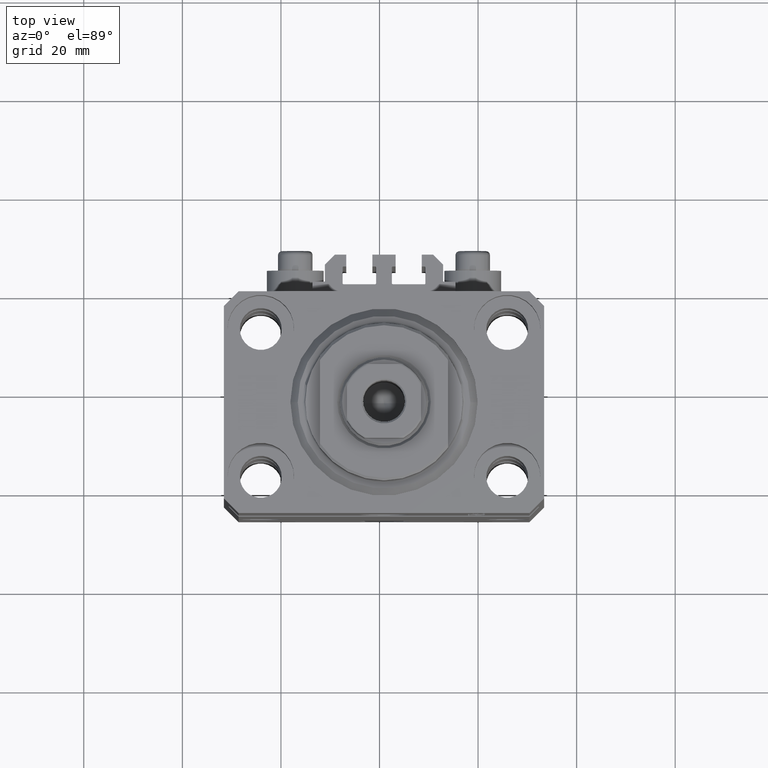
[diagram: clean part render]
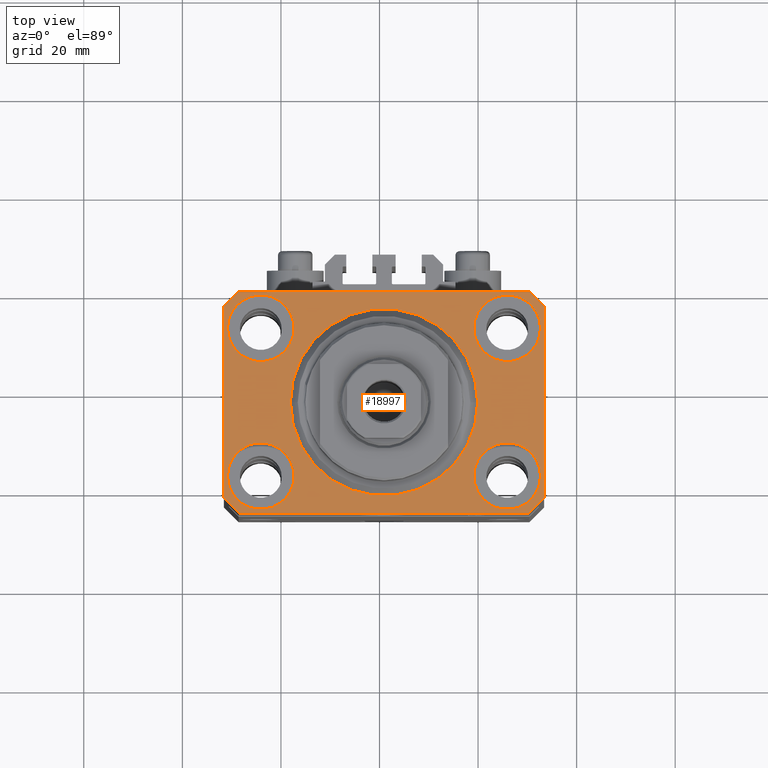
[diagram: same view with one face highlighted and labeled with its STEP entity id]
A machine part, top view. The second image highlights one B-rep face of the part: STEP entity #18997.
In plain terms, the highlighted planar face has unit normal (0, 0, 1).
Its self-contained STEP definition (entity closure, byte-faithful):
#188 = EDGE_CURVE ( 'NONE', #351, #15461, #39871, .T. ) ;
#351 = VERTEX_POINT ( 'NONE', #32599 ) ;
#956 = ORIENTED_EDGE ( 'NONE', *, *, #38778, .T. ) ;
#962 = VECTOR ( 'NONE', #21456, 1000.000000000000114 ) ;
#1853 = CARTESIAN_POINT ( 'NONE',  ( -29.49999999999650413, -22.49999999999949907, 0.000000000000000000 ) ) ;
#1897 = CIRCLE ( 'NONE', #15775, 19.00000000000000000 ) ;
#2062 = VERTEX_POINT ( 'NONE', #34854 ) ;
#2357 = VECTOR ( 'NONE', #44519, 1000.000000000000114 ) ;
#2491 = CARTESIAN_POINT ( 'NONE',  ( 29.49999999999650413, -22.49999999999949196, 0.000000000000000000 ) ) ;
#2742 = DIRECTION ( 'NONE',  ( 1.000000000000000000, 0.000000000000000000, 0.000000000000000000 ) ) ;
#3148 = AXIS2_PLACEMENT_3D ( 'NONE', #21298, #25167, #32875 ) ;
#3178 = CARTESIAN_POINT ( 'NONE',  ( 25.00000000000000355, -15.00000000000000000, 0.000000000000000000 ) ) ;
#3392 = DIRECTION ( 'NONE',  ( 0.000000000000000000, 0.000000000000000000, 1.000000000000000000 ) ) ;
#3964 = AXIS2_PLACEMENT_3D ( 'NONE', #38559, #8667, #42185 ) ;
#4219 = LINE ( 'NONE', #33896, #2357 ) ;
#5114 = ORIENTED_EDGE ( 'NONE', *, *, #10741, .T. ) ;
#6140 = CARTESIAN_POINT ( 'NONE',  ( 18.25000000004154543, 15.00000000000000888, 0.000000000000000000 ) ) ;
#6759 = ORIENTED_EDGE ( 'NONE', *, *, #26435, .T. ) ;
#6974 = EDGE_CURVE ( 'NONE', #19209, #10525, #4219, .T. ) ;
#7480 = VERTEX_POINT ( 'NONE', #14924 ) ;
#7614 = EDGE_CURVE ( 'NONE', #37923, #32635, #17038, .T. ) ;
#7667 = VERTEX_POINT ( 'NONE', #32734 ) ;
#7830 = CIRCLE ( 'NONE', #20157, 6.750000000022533087 ) ;
#7955 = DIRECTION ( 'NONE',  ( 0.000000000000000000, 0.000000000000000000, 1.000000000000000000 ) ) ;
#8013 = CARTESIAN_POINT ( 'NONE',  ( 18.25000000002253842, -15.00000000000000000, 0.000000000000000000 ) ) ;
#8378 = DIRECTION ( 'NONE',  ( 1.000000000000000000, 1.176083712526788232E-16, 0.000000000000000000 ) ) ;
#8501 = VERTEX_POINT ( 'NONE', #19778 ) ;
#8667 = DIRECTION ( 'NONE',  ( 0.000000000000000000, 0.000000000000000000, 1.000000000000000000 ) ) ;
#8959 = VERTEX_POINT ( 'NONE', #47663 ) ;
#9340 = DIRECTION ( 'NONE',  ( 1.000000000000000000, 0.000000000000000000, 0.000000000000000000 ) ) ;
#9710 = DIRECTION ( 'NONE',  ( 0.000000000000000000, -1.000000000000000000, 0.000000000000000000 ) ) ;
#9728 = DIRECTION ( 'NONE',  ( -0.7071067811865352493, 0.7071067811865597852, 0.000000000000000000 ) ) ;
#10412 = EDGE_CURVE ( 'NONE', #7480, #36389, #35606, .T. ) ;
#10525 = VERTEX_POINT ( 'NONE', #30652 ) ;
#10741 = EDGE_CURVE ( 'NONE', #46018, #15131, #21943, .T. ) ;
#11190 = EDGE_CURVE ( 'NONE', #15131, #19209, #21048, .T. ) ;
#11400 = AXIS2_PLACEMENT_3D ( 'NONE', #29288, #47140, #2742 ) ;
#11631 = VERTEX_POINT ( 'NONE', #6140 ) ;
#11954 = CARTESIAN_POINT ( 'NONE',  ( -19.00000000000000000, 2.326828918379970970E-15, 0.000000000000000000 ) ) ;
#12454 = ORIENTED_EDGE ( 'NONE', *, *, #7614, .F. ) ;
#12904 = EDGE_CURVE ( 'NONE', #35177, #7667, #1897, .T. ) ;
#13186 = AXIS2_PLACEMENT_3D ( 'NONE', #27927, #19956, #9340 ) ;
#13337 = CARTESIAN_POINT ( 'NONE',  ( -32.49999999999650413, 19.49999999999949907, 0.000000000000000000 ) ) ;
#13601 = LINE ( 'NONE', #16730, #33221 ) ;
#14114 = CARTESIAN_POINT ( 'NONE',  ( 24.99999999999999645, 15.00000000000000888, 0.000000000000000000 ) ) ;
#14702 = CIRCLE ( 'NONE', #3148, 6.749999999977465137 ) ;
#14708 = DIRECTION ( 'NONE',  ( 0.000000000000000000, 0.000000000000000000, 1.000000000000000000 ) ) ;
#14924 = CARTESIAN_POINT ( 'NONE',  ( 31.74999999997746869, -15.00000000000000000, 0.000000000000000000 ) ) ;
#15001 = VECTOR ( 'NONE', #45836, 1000.000000000000000 ) ;
#15131 = VERTEX_POINT ( 'NONE', #45677 ) ;
#15136 = EDGE_LOOP ( 'NONE', ( #46270, #29520 ) ) ;
#15461 = VERTEX_POINT ( 'NONE', #45375 ) ;
#15775 = AXIS2_PLACEMENT_3D ( 'NONE', #22243, #18381, #44210 ) ;
#16412 = EDGE_CURVE ( 'NONE', #36389, #7480, #14702, .T. ) ;
#16617 = FACE_BOUND ( 'NONE', #43454, .T. ) ;
#16730 = CARTESIAN_POINT ( 'NONE',  ( 32.49999999999702993, 19.49999999999945999, 0.000000000000000000 ) ) ;
#17038 = CIRCLE ( 'NONE', #13186, 6.750000000041541881 ) ;
#17458 = ORIENTED_EDGE ( 'NONE', *, *, #10412, .F. ) ;
#17847 = CARTESIAN_POINT ( 'NONE',  ( -25.00000000000000355, -15.00000000000000000, 0.000000000000000000 ) ) ;
#17950 = ORIENTED_EDGE ( 'NONE', *, *, #12904, .F. ) ;
#18169 = DIRECTION ( 'NONE',  ( 0.7071067811865483499, 0.7071067811865466846, 0.000000000000000000 ) ) ;
#18381 = DIRECTION ( 'NONE',  ( 0.000000000000000000, 0.000000000000000000, 1.000000000000000000 ) ) ;
#18788 = EDGE_CURVE ( 'NONE', #2062, #8501, #13601, .T. ) ;
#18855 = DIRECTION ( 'NONE',  ( 1.000000000000000000, 0.000000000000000000, 0.000000000000000000 ) ) ;
#18950 = EDGE_CURVE ( 'NONE', #21134, #36853, #7830, .T. ) ;
#18997 = ADVANCED_FACE ( 'NONE', ( #27485, #30622, #27968, #30858, #16617, #31340 ), #45573, .T. ) ;
#19209 = VERTEX_POINT ( 'NONE', #40233 ) ;
#19778 = CARTESIAN_POINT ( 'NONE',  ( 29.49999999999707967, 22.49999999999951328, 0.000000000000000000 ) ) ;
#19956 = DIRECTION ( 'NONE',  ( 0.000000000000000000, 0.000000000000000000, 1.000000000000000000 ) ) ;
#20157 = AXIS2_PLACEMENT_3D ( 'NONE', #25653, #7955, #37387 ) ;
#20227 = LINE ( 'NONE', #45321, #47404 ) ;
#20284 = CARTESIAN_POINT ( 'NONE',  ( -29.49999999999650413, 22.49999999999949907, 0.000000000000000000 ) ) ;
#20897 = CARTESIAN_POINT ( 'NONE',  ( -31.75000000002253842, 15.00000000000000000, 0.000000000000000000 ) ) ;
#21048 = LINE ( 'NONE', #13337, #23309 ) ;
#21134 = VERTEX_POINT ( 'NONE', #31511 ) ;
#21298 = CARTESIAN_POINT ( 'NONE',  ( 25.00000000000000355, -15.00000000000000000, 0.000000000000000000 ) ) ;
#21456 = DIRECTION ( 'NONE',  ( -0.7071067811865474617, -0.7071067811865474617, 0.000000000000000000 ) ) ;
#21943 = LINE ( 'NONE', #40270, #962 ) ;
#22243 = CARTESIAN_POINT ( 'NONE',  ( 0.000000000000000000, 0.000000000000000000, 0.000000000000000000 ) ) ;
#22323 = AXIS2_PLACEMENT_3D ( 'NONE', #14114, #29768, #28832 ) ;
#22421 = ORIENTED_EDGE ( 'NONE', *, *, #16412, .F. ) ;
#22477 = DIRECTION ( 'NONE',  ( 0.000000000000000000, 0.000000000000000000, 1.000000000000000000 ) ) ;
#22496 = CARTESIAN_POINT ( 'NONE',  ( -18.24999999995846167, -15.00000000000000000, 0.000000000000000000 ) ) ;
#23033 = CIRCLE ( 'NONE', #35371, 6.750000000041541881 ) ;
#23309 = VECTOR ( 'NONE', #9710, 1000.000000000000000 ) ;
#23557 = ORIENTED_EDGE ( 'NONE', *, *, #11190, .T. ) ;
#24120 = CARTESIAN_POINT ( 'NONE',  ( 29.49999999999707967, 22.49999999999951328, 0.000000000000000000 ) ) ;
#24444 = ORIENTED_EDGE ( 'NONE', *, *, #18788, .T. ) ;
#24531 = VECTOR ( 'NONE', #8378, 1000.000000000000000 ) ;
#25167 = DIRECTION ( 'NONE',  ( 0.000000000000000000, 0.000000000000000000, 1.000000000000000000 ) ) ;
#25653 = CARTESIAN_POINT ( 'NONE',  ( -25.00000000000000355, 15.00000000000000000, 0.000000000000000000 ) ) ;
#25698 = EDGE_LOOP ( 'NONE', ( #37207, #12454 ) ) ;
#25861 = DIRECTION ( 'NONE',  ( 1.000000000000000000, 0.000000000000000000, 0.000000000000000000 ) ) ;
#26097 = CARTESIAN_POINT ( 'NONE',  ( 0.000000000000000000, 0.000000000000000000, 0.000000000000000000 ) ) ;
#26435 = EDGE_CURVE ( 'NONE', #8501, #46018, #34973, .T. ) ;
#27137 = EDGE_LOOP ( 'NONE', ( #17458, #22421 ) ) ;
#27437 = AXIS2_PLACEMENT_3D ( 'NONE', #29690, #3392, #44398 ) ;
#27485 = FACE_BOUND ( 'NONE', #25698, .T. ) ;
#27559 = CIRCLE ( 'NONE', #11400, 6.750000000022533087 ) ;
#27927 = CARTESIAN_POINT ( 'NONE',  ( -25.00000000000000355, -15.00000000000000000, 0.000000000000000000 ) ) ;
#27968 = FACE_BOUND ( 'NONE', #15136, .T. ) ;
#28280 = CARTESIAN_POINT ( 'NONE',  ( -31.75000000004154899, -15.00000000000000000, 0.000000000000000000 ) ) ;
#28339 = ORIENTED_EDGE ( 'NONE', *, *, #30618, .T. ) ;
#28832 = DIRECTION ( 'NONE',  ( 1.000000000000000000, 0.000000000000000000, 0.000000000000000000 ) ) ;
#28983 = ORIENTED_EDGE ( 'NONE', *, *, #18950, .F. ) ;
#29288 = CARTESIAN_POINT ( 'NONE',  ( -25.00000000000000355, 15.00000000000000000, 0.000000000000000000 ) ) ;
#29520 = ORIENTED_EDGE ( 'NONE', *, *, #32956, .F. ) ;
#29690 = CARTESIAN_POINT ( 'NONE',  ( 24.99999999999999645, 15.00000000000000888, 0.000000000000000000 ) ) ;
#29768 = DIRECTION ( 'NONE',  ( 0.000000000000000000, 0.000000000000000000, 1.000000000000000000 ) ) ;
#30618 = EDGE_CURVE ( 'NONE', #15461, #2062, #20227, .T. ) ;
#30622 = FACE_BOUND ( 'NONE', #27137, .T. ) ;
#30652 = CARTESIAN_POINT ( 'NONE',  ( -29.49999999999650413, -22.49999999999949907, 0.000000000000000000 ) ) ;
#30736 = EDGE_LOOP ( 'NONE', ( #6759, #5114, #23557, #39266, #956, #42733, #28339, #24444 ) ) ;
#30791 = CIRCLE ( 'NONE', #22323, 6.749999999958452790 ) ;
#30858 = FACE_BOUND ( 'NONE', #38041, .T. ) ;
#31094 = DIRECTION ( 'NONE',  ( 1.334402673828349134E-14, 1.000000000000000000, 0.000000000000000000 ) ) ;
#31340 = FACE_OUTER_BOUND ( 'NONE', #30736, .T. ) ;
#31511 = CARTESIAN_POINT ( 'NONE',  ( -18.24999999997747224, 15.00000000000000000, 0.000000000000000000 ) ) ;
#32599 = CARTESIAN_POINT ( 'NONE',  ( 29.49999999999650413, -22.49999999999949196, 0.000000000000000000 ) ) ;
#32635 = VERTEX_POINT ( 'NONE', #22496 ) ;
#32734 = CARTESIAN_POINT ( 'NONE',  ( 19.00000000000000000, 0.000000000000000000, 0.000000000000000000 ) ) ;
#32839 = CIRCLE ( 'NONE', #27437, 6.749999999958452790 ) ;
#32875 = DIRECTION ( 'NONE',  ( 1.000000000000000000, 0.000000000000000000, 0.000000000000000000 ) ) ;
#32956 = EDGE_CURVE ( 'NONE', #11631, #8959, #32839, .T. ) ;
#33221 = VECTOR ( 'NONE', #9728, 1000.000000000000000 ) ;
#33534 = ORIENTED_EDGE ( 'NONE', *, *, #45930, .F. ) ;
#33896 = CARTESIAN_POINT ( 'NONE',  ( -32.49999999999650413, -19.49999999999949907, 0.000000000000000000 ) ) ;
#34854 = CARTESIAN_POINT ( 'NONE',  ( 32.49999999999702993, 19.49999999999945999, 0.000000000000000000 ) ) ;
#34973 = LINE ( 'NONE', #24120, #15001 ) ;
#35177 = VERTEX_POINT ( 'NONE', #11954 ) ;
#35371 = AXIS2_PLACEMENT_3D ( 'NONE', #17847, #14708, #44373 ) ;
#35606 = CIRCLE ( 'NONE', #40213, 6.749999999977465137 ) ;
#36389 = VERTEX_POINT ( 'NONE', #8013 ) ;
#36853 = VERTEX_POINT ( 'NONE', #20897 ) ;
#37207 = ORIENTED_EDGE ( 'NONE', *, *, #40869, .F. ) ;
#37387 = DIRECTION ( 'NONE',  ( 1.000000000000000000, 0.000000000000000000, 0.000000000000000000 ) ) ;
#37730 = EDGE_CURVE ( 'NONE', #36853, #21134, #27559, .T. ) ;
#37923 = VERTEX_POINT ( 'NONE', #28280 ) ;
#38041 = EDGE_LOOP ( 'NONE', ( #28983, #45701 ) ) ;
#38559 = CARTESIAN_POINT ( 'NONE',  ( 0.000000000000000000, 0.000000000000000000, 0.000000000000000000 ) ) ;
#38778 = EDGE_CURVE ( 'NONE', #10525, #351, #41430, .T. ) ;
#39266 = ORIENTED_EDGE ( 'NONE', *, *, #6974, .T. ) ;
#39871 = LINE ( 'NONE', #2491, #43114 ) ;
#40079 = DIRECTION ( 'NONE',  ( 0.000000000000000000, 0.000000000000000000, 1.000000000000000000 ) ) ;
#40213 = AXIS2_PLACEMENT_3D ( 'NONE', #3178, #40079, #25861 ) ;
#40233 = CARTESIAN_POINT ( 'NONE',  ( -32.49999999999650413, -19.49999999999949907, 0.000000000000000000 ) ) ;
#40270 = CARTESIAN_POINT ( 'NONE',  ( -29.49999999999650413, 22.49999999999949907, 0.000000000000000000 ) ) ;
#40869 = EDGE_CURVE ( 'NONE', #32635, #37923, #23033, .T. ) ;
#40913 = CIRCLE ( 'NONE', #45528, 19.00000000000000000 ) ;
#41430 = LINE ( 'NONE', #1853, #24531 ) ;
#42003 = EDGE_CURVE ( 'NONE', #8959, #11631, #30791, .T. ) ;
#42185 = DIRECTION ( 'NONE',  ( 1.000000000000000000, 0.000000000000000000, -0.000000000000000000 ) ) ;
#42733 = ORIENTED_EDGE ( 'NONE', *, *, #188, .T. ) ;
#43114 = VECTOR ( 'NONE', #18169, 1000.000000000000000 ) ;
#43454 = EDGE_LOOP ( 'NONE', ( #33534, #17950 ) ) ;
#44210 = DIRECTION ( 'NONE',  ( 1.000000000000000000, 0.000000000000000000, 0.000000000000000000 ) ) ;
#44373 = DIRECTION ( 'NONE',  ( 1.000000000000000000, 0.000000000000000000, 0.000000000000000000 ) ) ;
#44398 = DIRECTION ( 'NONE',  ( 1.000000000000000000, 0.000000000000000000, 0.000000000000000000 ) ) ;
#44519 = DIRECTION ( 'NONE',  ( 0.7071067811865474617, -0.7071067811865474617, 0.000000000000000000 ) ) ;
#45321 = CARTESIAN_POINT ( 'NONE',  ( 32.49999999999651124, -19.49999999999949196, 0.000000000000000000 ) ) ;
#45375 = CARTESIAN_POINT ( 'NONE',  ( 32.49999999999651124, -19.49999999999949196, 0.000000000000000000 ) ) ;
#45528 = AXIS2_PLACEMENT_3D ( 'NONE', #26097, #22477, #18855 ) ;
#45573 = PLANE ( 'NONE',  #3964 ) ;
#45677 = CARTESIAN_POINT ( 'NONE',  ( -32.49999999999650413, 19.49999999999949907, 0.000000000000000000 ) ) ;
#45701 = ORIENTED_EDGE ( 'NONE', *, *, #37730, .F. ) ;
#45836 = DIRECTION ( 'NONE',  ( -1.000000000000000000, -2.352167425053553784E-16, 0.000000000000000000 ) ) ;
#45930 = EDGE_CURVE ( 'NONE', #7667, #35177, #40913, .T. ) ;
#46018 = VERTEX_POINT ( 'NONE', #20284 ) ;
#46270 = ORIENTED_EDGE ( 'NONE', *, *, #42003, .F. ) ;
#47140 = DIRECTION ( 'NONE',  ( 0.000000000000000000, 0.000000000000000000, 1.000000000000000000 ) ) ;
#47404 = VECTOR ( 'NONE', #31094, 1000.000000000000000 ) ;
#47663 = CARTESIAN_POINT ( 'NONE',  ( 31.74999999995845101, 15.00000000000000888, 0.000000000000000000 ) ) ;